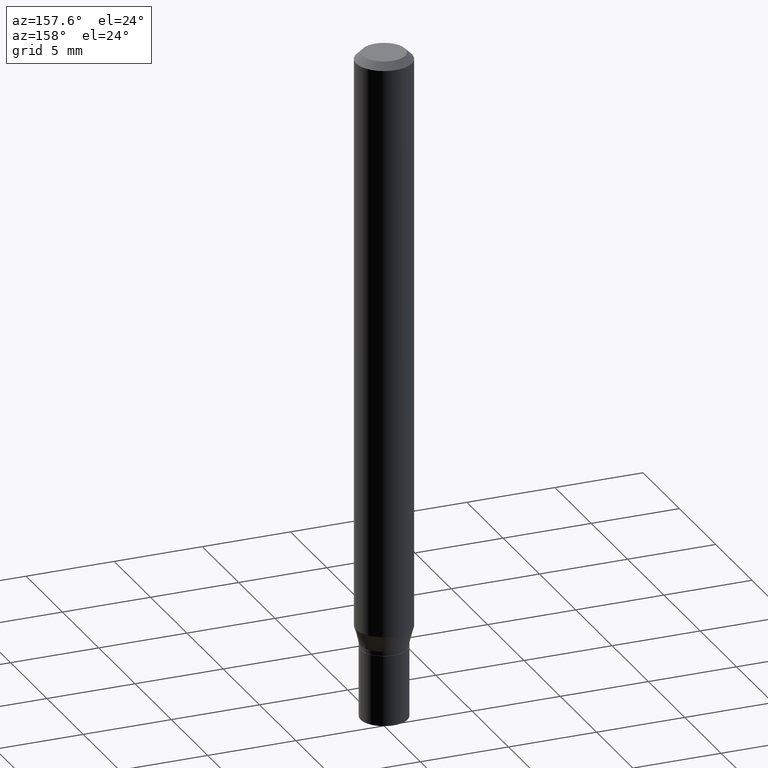
[diagram: clean part render]
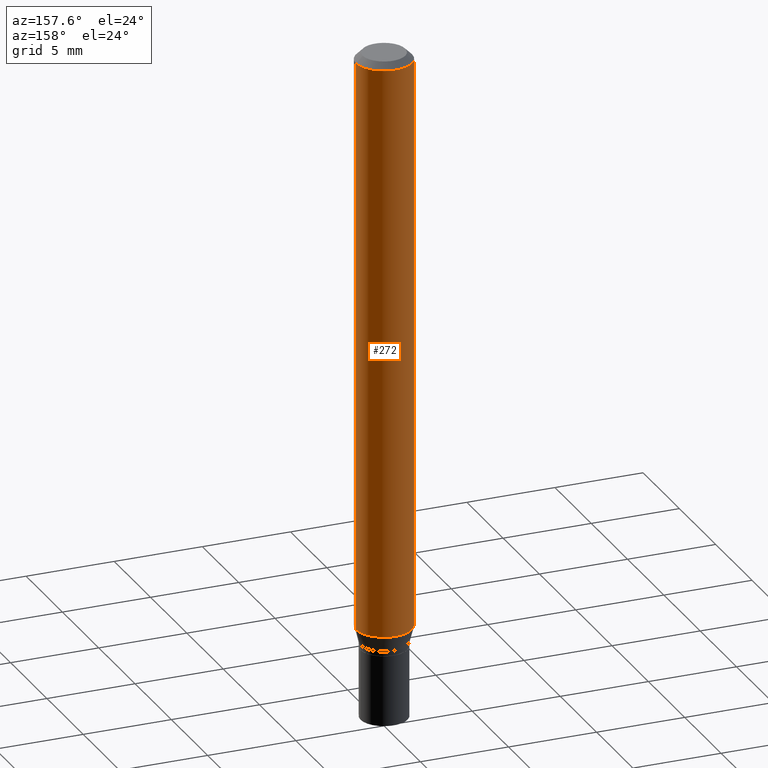
[diagram: same view with one face highlighted and labeled with its STEP entity id]
A machine part, auxiliary view. The second image highlights one B-rep face of the part: STEP entity #272.
In plain terms, the highlighted cylindrical surface (edge-blend (fillet) strip) has radius 1.5875 mm, axis along (-0, 0, 1).
Its self-contained STEP definition (entity closure, byte-faithful):
#6 = CARTESIAN_POINT ( 'NONE',  ( 0.06250000000000000000, -4.956784453192048385E-15, -1.294679491924311199 ) ) ;
#19 = DIRECTION ( 'NONE',  ( -2.445468806185136877E-29, 3.491481338843145188E-15, 1.000000000000000000 ) ) ;
#30 = DIRECTION ( 'NONE',  ( -2.445468806185136877E-29, 3.491481338843145188E-15, 1.000000000000000000 ) ) ;
#47 = DIRECTION ( 'NONE',  ( 1.000000000000000000, -6.982962677686262766E-15, 0.000000000000000000 ) ) ;
#59 = CARTESIAN_POINT ( 'NONE',  ( 0.06250000000000000000, -4.888073874380388472E-16, -0.01499999999999999944 ) ) ;
#102 = CARTESIAN_POINT ( 'NONE',  ( -0.06250000000000000000, -1.842271543109589873E-15, -0.01499999999999999944 ) ) ;
#111 = CARTESIAN_POINT ( 'NONE',  ( -0.06250000000000000000, 4.440892098500626162E-16, -3.074334431409316114E-30 ) ) ;
#136 = LINE ( 'NONE', #342, #367 ) ;
#153 = VERTEX_POINT ( 'NONE', #59 ) ;
#173 = CARTESIAN_POINT ( 'NONE',  ( 0.000000000000000000, 0.000000000000000000, 0.000000000000000000 ) ) ;
#176 = DIRECTION ( 'NONE',  ( -2.445468806185136597E-29, 3.491481338843145583E-15, 1.000000000000000000 ) ) ;
#179 = FACE_OUTER_BOUND ( 'NONE', #291, .T. ) ;
#207 = AXIS2_PLACEMENT_3D ( 'NONE', #173, #424, #312 ) ;
#228 = CARTESIAN_POINT ( 'NONE',  ( 3.166098311508524347E-29, -4.520349285836657505E-15, -1.294679491924311199 ) ) ;
#235 = VERTEX_POINT ( 'NONE', #6 ) ;
#249 = AXIS2_PLACEMENT_3D ( 'NONE', #346, #176, #391 ) ;
#254 = EDGE_CURVE ( 'NONE', #235, #296, #347, .T. ) ;
#270 = VECTOR ( 'NONE', #30, 39.37007874015748143 ) ;
#272 = ADVANCED_FACE ( 'NONE', ( #179 ), #311, .T. ) ;
#278 = ORIENTED_EDGE ( 'NONE', *, *, #379, .F. ) ;
#289 = EDGE_CURVE ( 'NONE', #153, #412, #430, .T. ) ;
#291 = EDGE_LOOP ( 'NONE', ( #409, #318, #299, #278 ) ) ;
#296 = VERTEX_POINT ( 'NONE', #307 ) ;
#299 = ORIENTED_EDGE ( 'NONE', *, *, #289, .F. ) ;
#307 = CARTESIAN_POINT ( 'NONE',  ( -0.06250000000000000000, -4.076260075986594889E-15, -1.294679491924311199 ) ) ;
#311 = CYLINDRICAL_SURFACE ( 'NONE', #207, 0.06250000000000000000 ) ;
#312 = DIRECTION ( 'NONE',  ( 1.000000000000000000, -6.982962677686266711E-15, 4.876176775795935793E-29 ) ) ;
#318 = ORIENTED_EDGE ( 'NONE', *, *, #435, .T. ) ;
#342 = CARTESIAN_POINT ( 'NONE',  ( 0.06250000000000000000, -4.364351673553916694E-16, 3.047610484872459871E-30 ) ) ;
#346 = CARTESIAN_POINT ( 'NONE',  ( 3.668203209277705088E-31, -5.237222008264718399E-17, -0.01499999999999999944 ) ) ;
#347 = CIRCLE ( 'NONE', #377, 0.06250000000000000000 ) ;
#367 = VECTOR ( 'NONE', #19, 39.37007874015748143 ) ;
#368 = DIRECTION ( 'NONE',  ( -2.445468806185136597E-29, 3.491481338843145583E-15, 1.000000000000000000 ) ) ;
#377 = AXIS2_PLACEMENT_3D ( 'NONE', #228, #368, #47 ) ;
#379 = EDGE_CURVE ( 'NONE', #235, #153, #136, .T. ) ;
#391 = DIRECTION ( 'NONE',  ( 1.000000000000000000, -6.982962677686266711E-15, 0.000000000000000000 ) ) ;
#392 = LINE ( 'NONE', #111, #270 ) ;
#409 = ORIENTED_EDGE ( 'NONE', *, *, #254, .T. ) ;
#412 = VERTEX_POINT ( 'NONE', #102 ) ;
#424 = DIRECTION ( 'NONE',  ( -2.445468806185136597E-29, 3.491481338843145583E-15, 1.000000000000000000 ) ) ;
#430 = CIRCLE ( 'NONE', #249, 0.06250000000000000000 ) ;
#435 = EDGE_CURVE ( 'NONE', #296, #412, #392, .T. ) ;